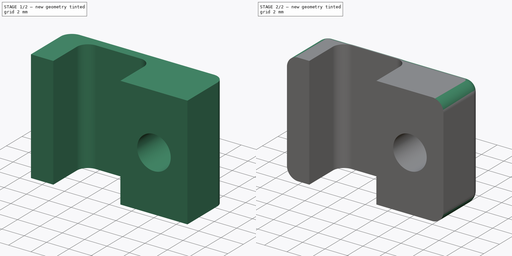
[diagram: build sequence overview — one tinted view per stage of 2, left to right]
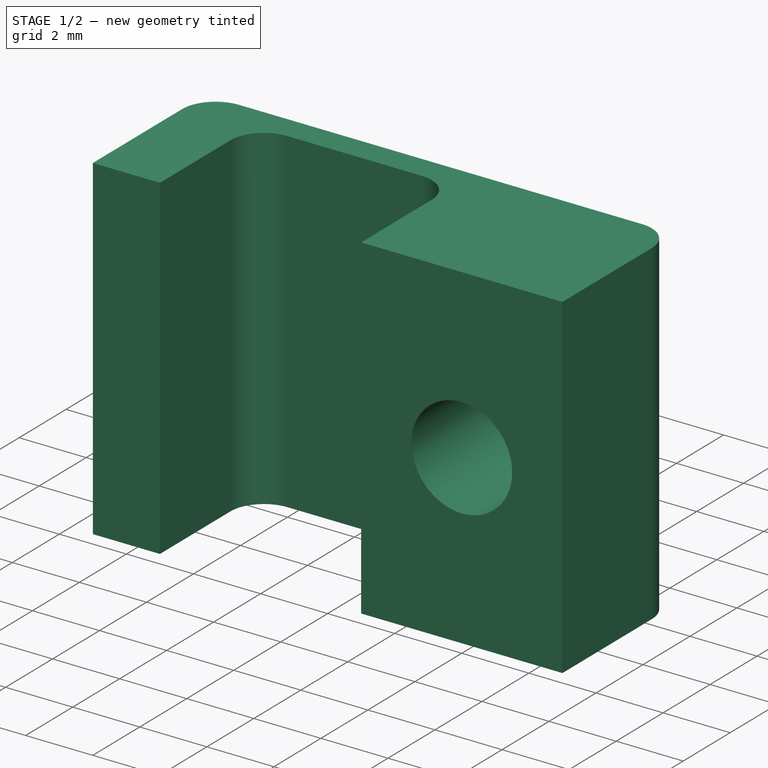
[diagram: stage 1 of 2 — iso view after this stage's code; geometry added in this stage tinted green]
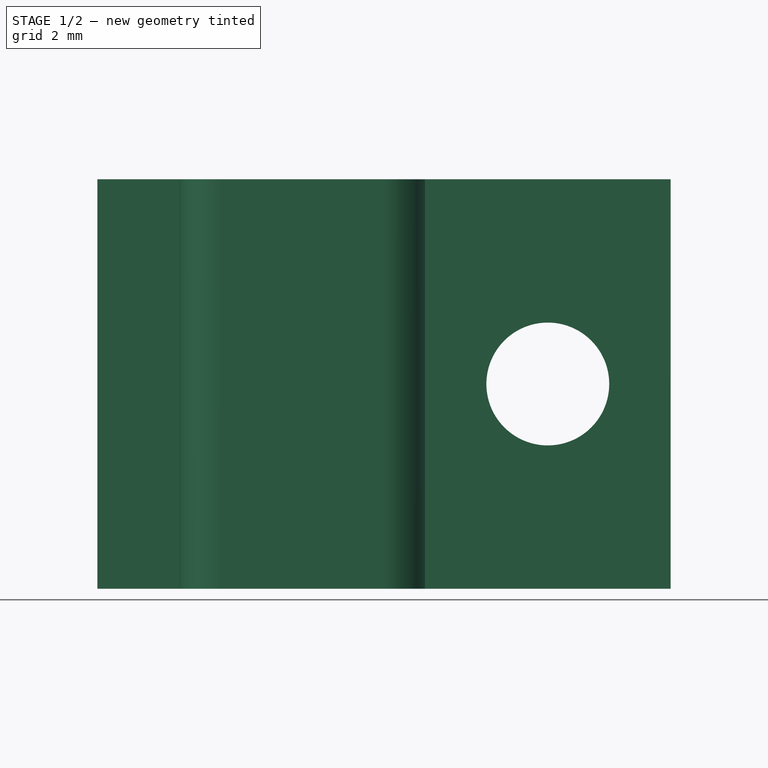
[diagram: stage 1 of 2 — front view after this stage's code; geometry added in this stage tinted green]
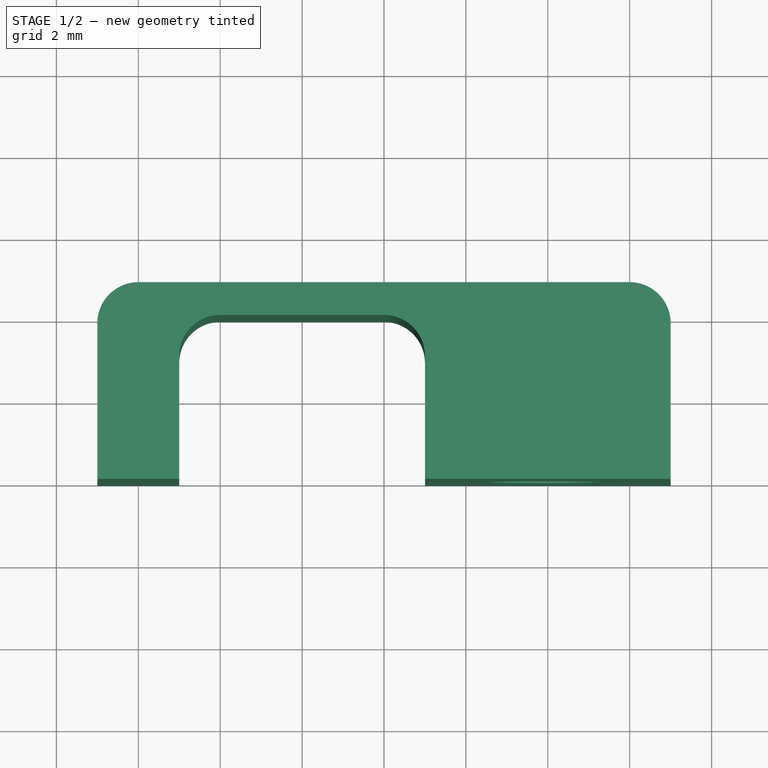
[diagram: stage 1 of 2 — top view after this stage's code; geometry added in this stage tinted green]
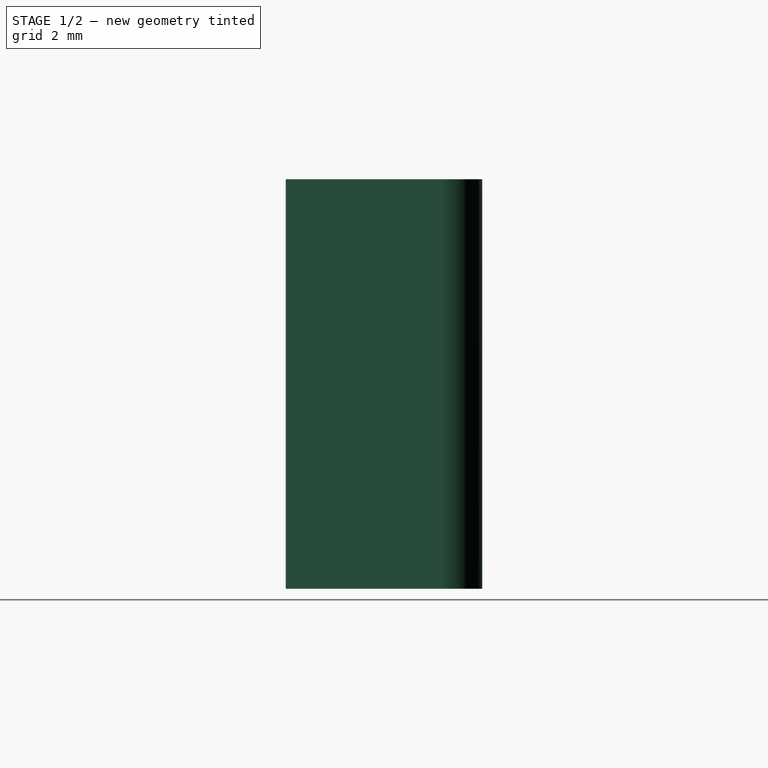
[diagram: stage 1 of 2 — right view after this stage's code; geometry added in this stage tinted green]
FCSTD DOCUMENT  (FreeCAD 0.19R23323 (Git))
Label: CableClip_V1
License: All rights reserved
LicenseURL: http://en.wikipedia.org/wiki/All_rights_reserved
objects: Sketcher::SketchObject×2, Spreadsheet::Sheet×1, PartDesign::Pad×1, PartDesign::Pocket×1, PartDesign::Fillet×1, PartDesign::Chamfer×1, PartDesign::Body×1
note: 11 computed .brp shape members not serialized (recipe doc carries the construction recipe); baked Part::Feature solids carry a one-line shape summary decoded from their .brp

FEATURE [Spreadsheet::Sheet] Spreadsheet  label="Param"
  cells = A1=Width; B1(Width)=10; A2=ChHeight; B2(ChHeight)=4; A3=MountDia; B3(MountDia)=3; A4=ChWidth; B4(ChWidth)=6; A5=FiletRadius; B5(FiletRadius)=1; A6=MountFilet; B6(MountFilet)=1
FEATURE [Sketcher::SketchObject] Sketch
  MapMode = 5
  Support = -> [XY_Plane]
  expr: Constraints[23] = <<Param>>.FiletRadius
  expr: Constraints[29] = <<Param>>.ChWidth / 3
  expr: Constraints[30] = <<Param>>.ChWidth
  expr: Constraints[28] = <<Param>>.ChWidth
  expr: Constraints[21] = 1.2 * Spreadsheet.ChHeight
  expr: Constraints[22] = Spreadsheet.ChHeight
  sketch-geometry (12):
    g0: LineSegment StartX=-9 StartY=0 StartZ=0 EndX=-9 EndY=3 EndZ=0
    g1: LineSegment StartX=-8 StartY=4 StartZ=0 EndX=-4 EndY=4 EndZ=0
    g2: LineSegment StartX=-3 StartY=3 StartZ=0 EndX=-3 EndY=0 EndZ=0
    g3: LineSegment StartX=-3 StartY=0 StartZ=0 EndX=3 EndY=0 EndZ=0
    g4: LineSegment StartX=3 StartY=0 StartZ=0 EndX=3 EndY=3.8 EndZ=0
    g5: LineSegment StartX=2 StartY=4.8 StartZ=0 EndX=-10 EndY=4.8 EndZ=0
    g6: LineSegment StartX=-11 StartY=3.8 StartZ=0 EndX=-11 EndY=0 EndZ=0
    g7: LineSegment StartX=-11 StartY=0 StartZ=0 EndX=-9 EndY=0 EndZ=0
    g8: ArcOfCircle CenterX=-8 CenterY=3 CenterZ=0 NormalX=0 NormalY=0 NormalZ=1 AngleXU=0 Radius=1 StartAngle=1.5708 EndAngle=3.14159
    g9: ArcOfCircle CenterX=-4 CenterY=3 CenterZ=0 NormalX=0 NormalY=0 NormalZ=1 AngleXU=0 Radius=1 StartAngle=0 EndAngle=1.5708
    g10: ArcOfCircle CenterX=-10 CenterY=3.8 CenterZ=0 NormalX=0 NormalY=0 NormalZ=1 AngleXU=0 Radius=1 StartAngle=1.5708 EndAngle=3.14159
    g11: ArcOfCircle CenterX=2 CenterY=3.8 CenterZ=0 NormalX=0 NormalY=0 NormalZ=1 AngleXU=0 Radius=1 StartAngle=0 EndAngle=1.5708
  constraints (31):
    c: PointOnObject(g0,g-1)
    c: Vertical(g0)
    c: Horizontal(g1)
    c: PointOnObject(g2,g-1)
    c: Vertical(g2)
    c: Coincident(g2,g3)
    c: Coincident(g3,g4)
    c: Vertical(g4)
    c: Horizontal(g5)
    c: PointOnObject(g6,g-1)
    c: Vertical(g6)
    c: Coincident(g6,g7)
    c: Coincident(g7,g0)
    c: Tangent(g0,g8) = 1.5708
    c: Tangent(g1,g8) = 1.5708
    c: Tangent(g1,g9) = 1.5708
    c: Tangent(g2,g9) = 1.5708
    c: Tangent(g5,g10) = -1.5708
    c: Tangent(g6,g10) = -1.5708
    c: Tangent(g4,g11) = -1.5708
    c: Tangent(g5,g11) = -1.5708
    c: DistanceY(g-1,g5) = 4.8
    c: DistanceY(g-1,g1) = 4
    c: Radius(g9) = 1
    c: Equal(g9,g8)
    c: Equal(g9,g10)
    c: Equal(g9,g11)
    c: Symmetric(g2,g3,g-2)
    c: Distance(g0,g2) = 6
    c: Distance(g7) = 2
    c: Distance(g3) = 6
FEATURE [PartDesign::Pad] Pad
  Direction = (1,1,1)
  Length = 10
  Length2 = 100
  Profile = -> Sketch
  Type = 0
  expr: Length = <<Param>>.Width
FEATURE [Sketcher::SketchObject] Sketch001
  ExternalGeometry = -> [Pad]
  MapMode = 5
  Placement = pos=(0,4.8,0) rot=(0,0.707107,0.707107;3.14159rad)
  Support = -> [Pad]
  expr: Constraints[4] = <<Param>>.MountDia / 2
  sketch-geometry (2):
    g0: LineSegment StartX=-3 StartY=5 StartZ=0 EndX=11 EndY=5 EndZ=0
    g1: Circle CenterX=0 CenterY=5 CenterZ=0 NormalX=0 NormalY=0 NormalZ=1 AngleXU=0 Radius=1.5
  constraints (6):
    c: Symmetric(g-4,g-3,g0)
    c: PointOnObject(g0,g-5)
    c: PointOnObject(g0,g-6)
    c: PointOnObject(g1,g0)
    c: Radius(g1) = 1.5
    c: PointOnObject(g1,g-2)
FEATURE [PartDesign::Pocket] Pocket
  BaseFeature = -> Pad
  Length = 5
  Length2 = 100
  Profile = -> Sketch001
  Type = 1
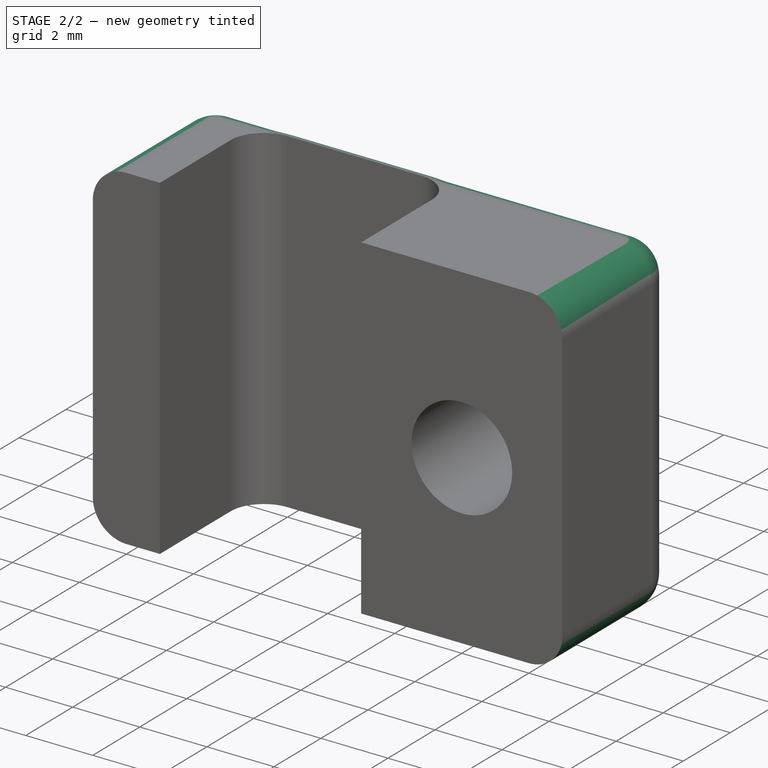
[diagram: stage 2 of 2 — iso view after this stage's code; geometry added in this stage tinted green]
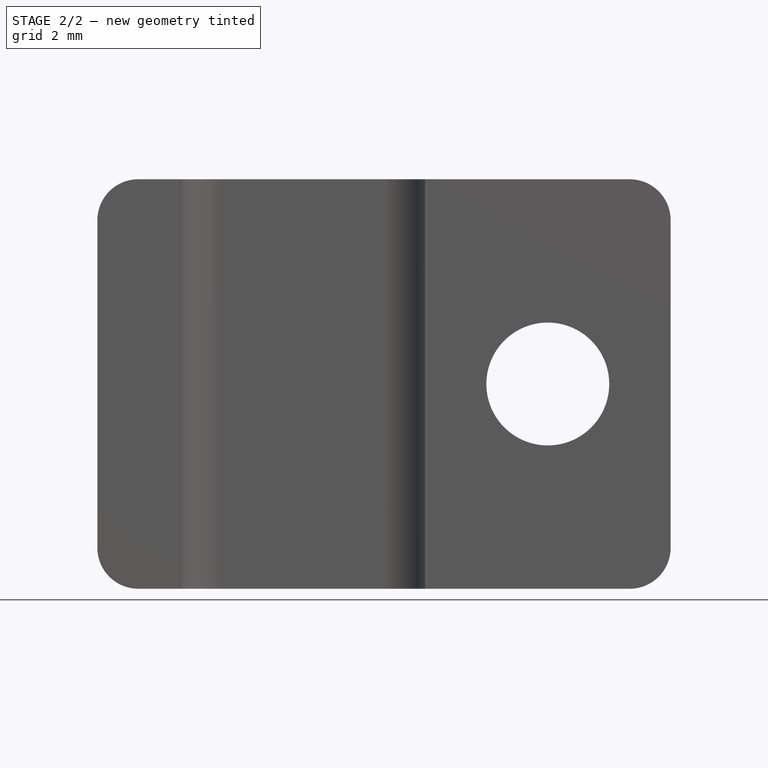
[diagram: stage 2 of 2 — front view after this stage's code; geometry added in this stage tinted green]
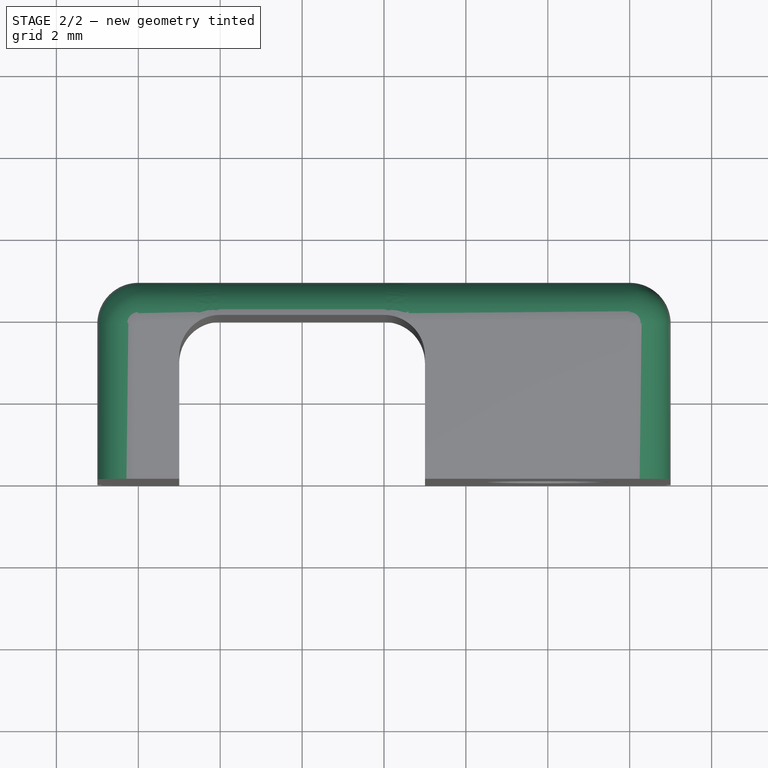
[diagram: stage 2 of 2 — top view after this stage's code; geometry added in this stage tinted green]
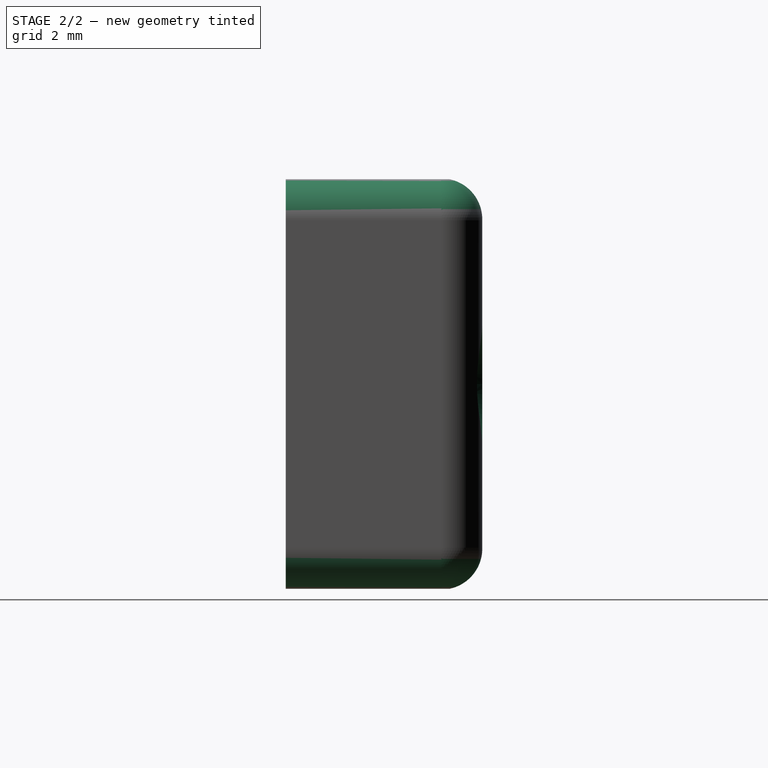
[diagram: stage 2 of 2 — right view after this stage's code; geometry added in this stage tinted green]
FEATURE [PartDesign::Fillet] Fillet
  Base = -> Pocket [Edge16,Edge23,Edge24,Edge25,Edge21,Edge22]
  BaseFeature = -> Pocket
  Radius = 1
  SupportTransform = false
FEATURE [PartDesign::Chamfer] Chamfer
  Angle = 45
  Base = -> Fillet [Edge42]
  BaseFeature = -> Fillet
  ChamferType = 0
  FlipDirection = false
  Size = 1
  Size2 = 1
  SupportTransform = false
  expr: Size = <<Param>>.MountFilet
FEATURE [PartDesign::Body] Body
  Group = -> [Sketch,Pad,Sketch001,Pocket,Fillet,Chamfer]
  Origin = -> Origin
  Tip = -> Chamfer
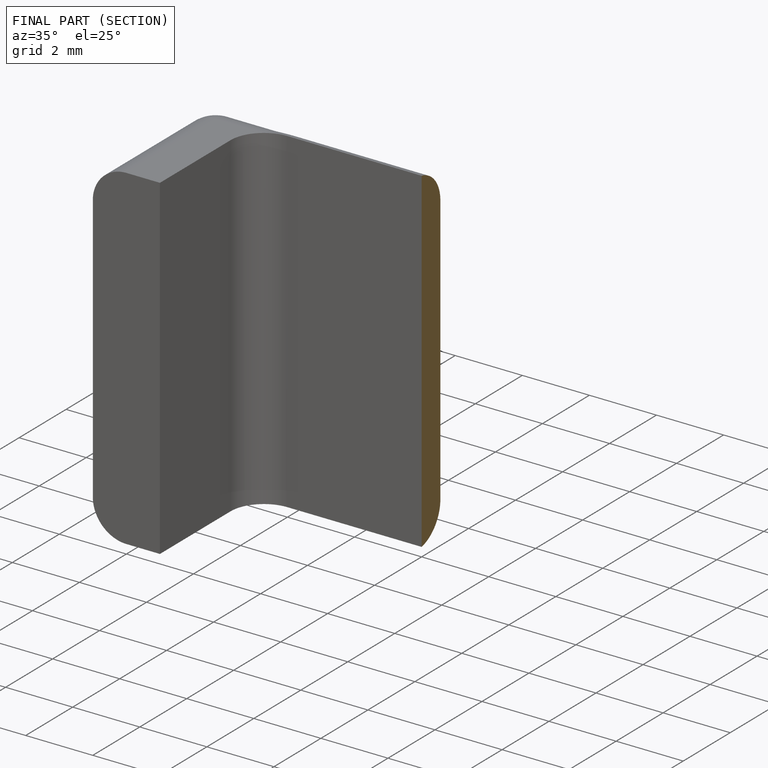
[diagram: finished part — half-section view (interior)]
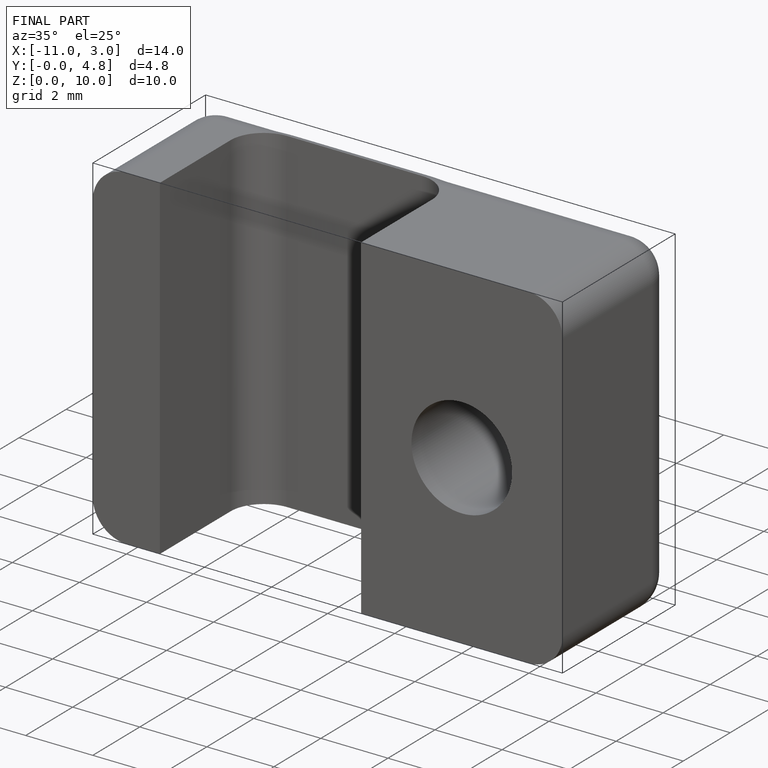
[diagram: finished part — iso view with bounding-box wireframe]
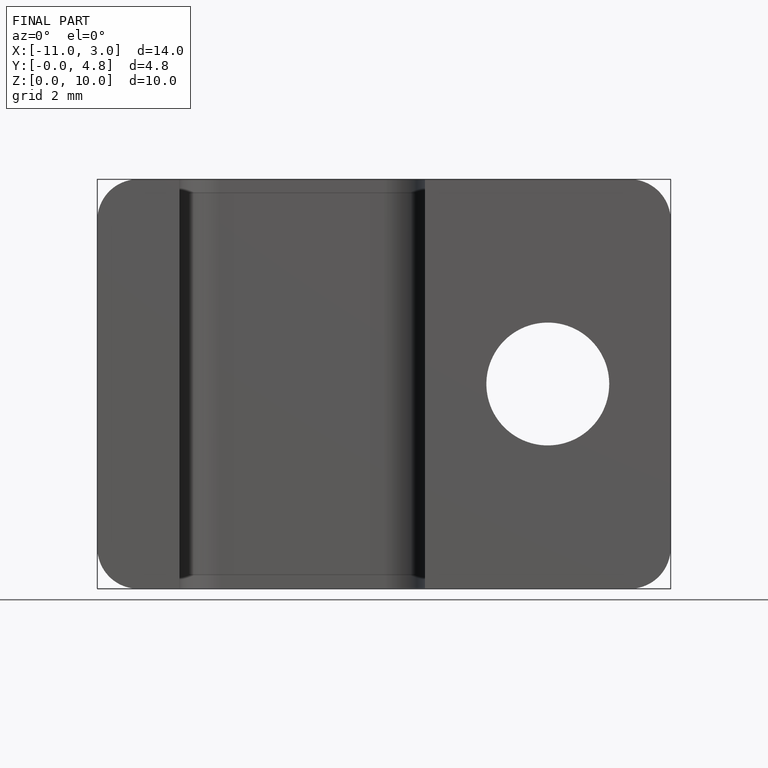
[diagram: finished part — front view with bounding-box wireframe]
